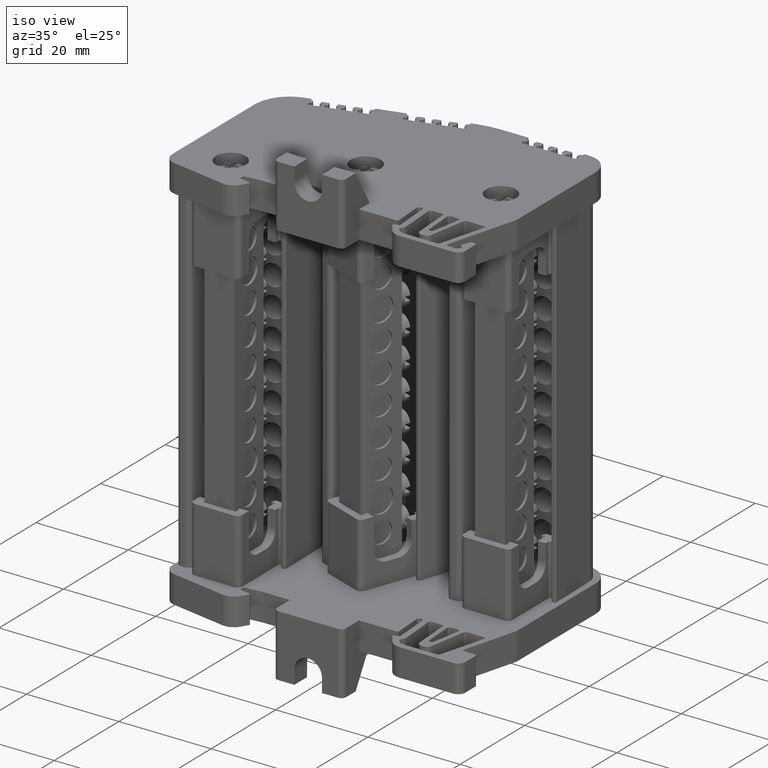
[diagram: clean part render]
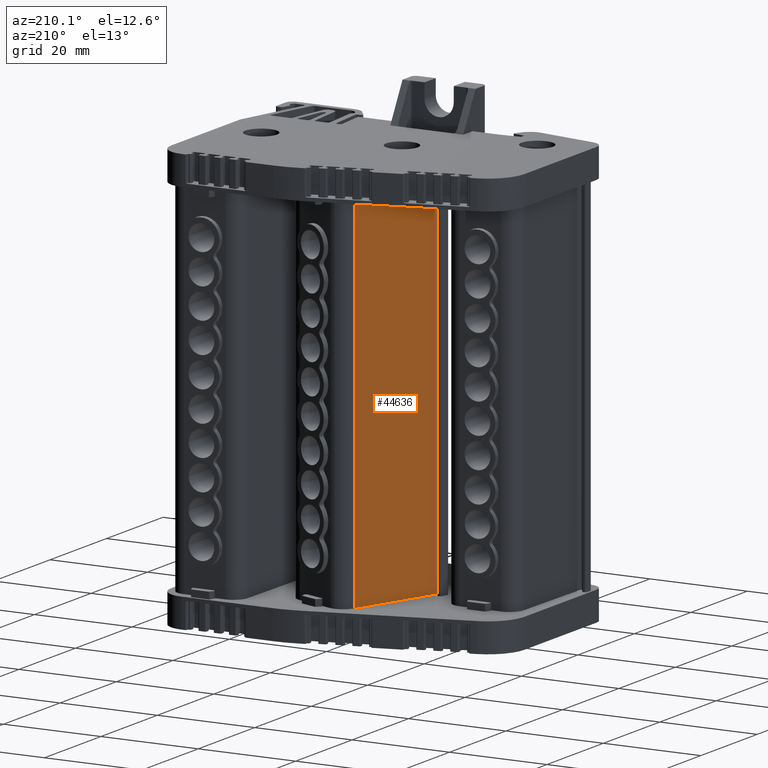
[diagram: tour spotlight — one face highlighted and labeled with its STEP entity id]
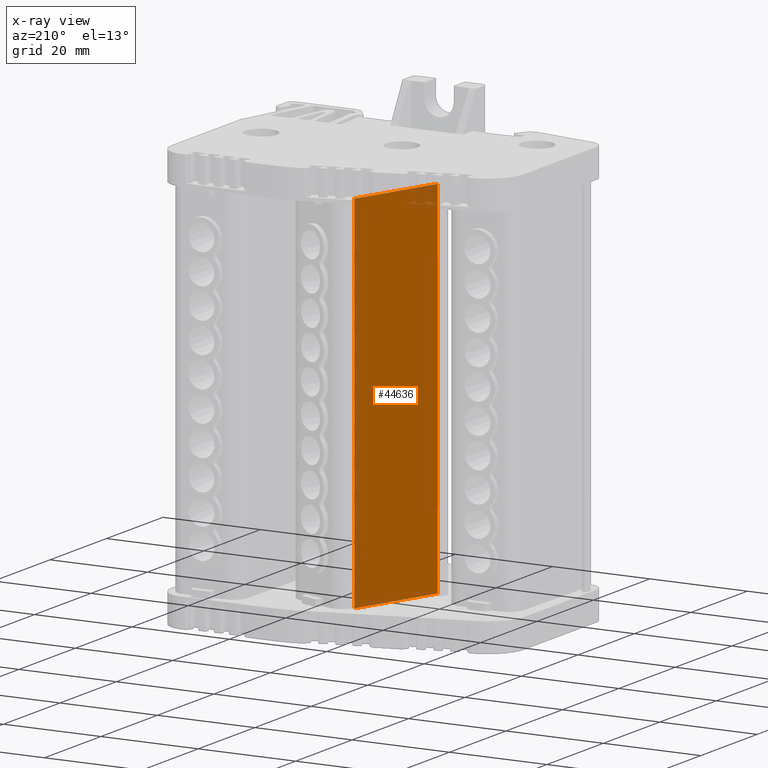
[diagram: x-ray of the same camera — body ghosted, this tour face saturated]
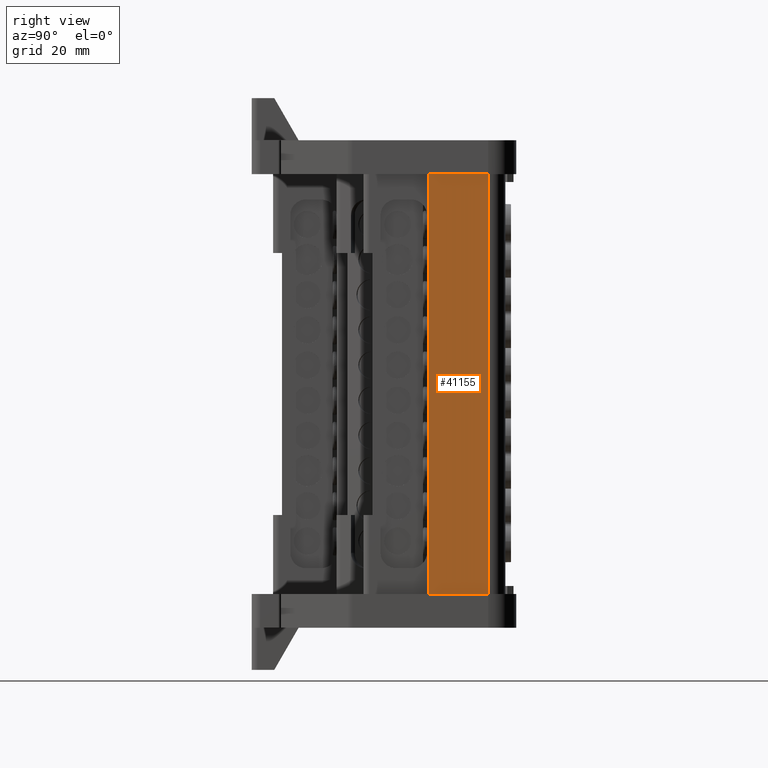
[diagram: tour spotlight — one face highlighted and labeled with its STEP entity id]
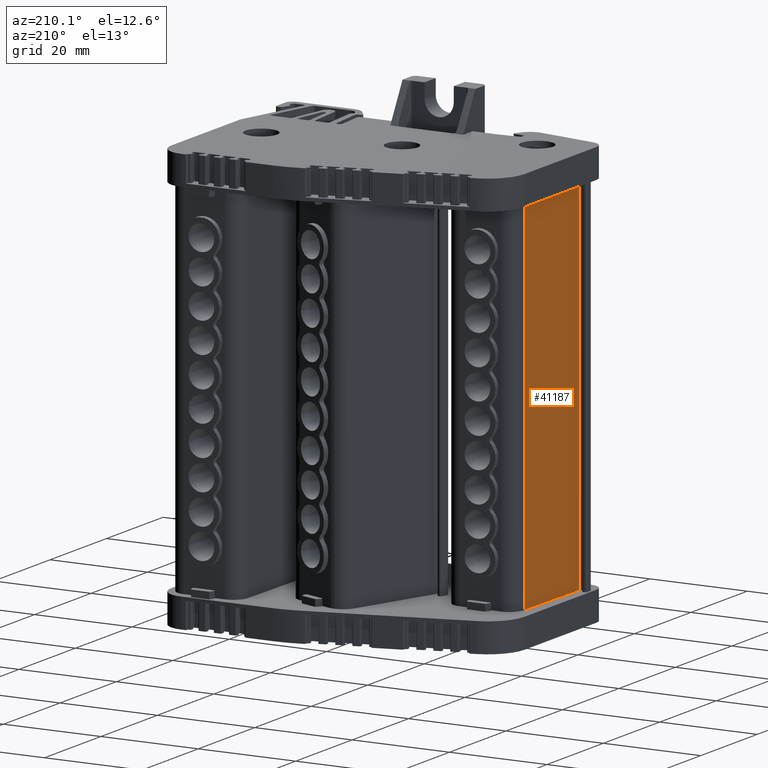
[diagram: tour spotlight — one face highlighted and labeled with its STEP entity id]
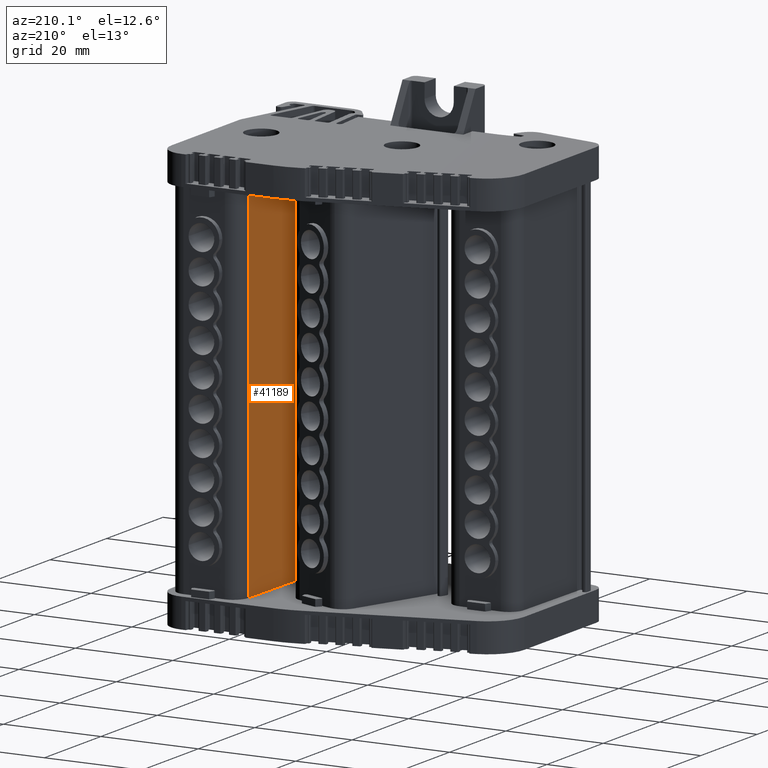
[diagram: tour spotlight — one face highlighted and labeled with its STEP entity id]
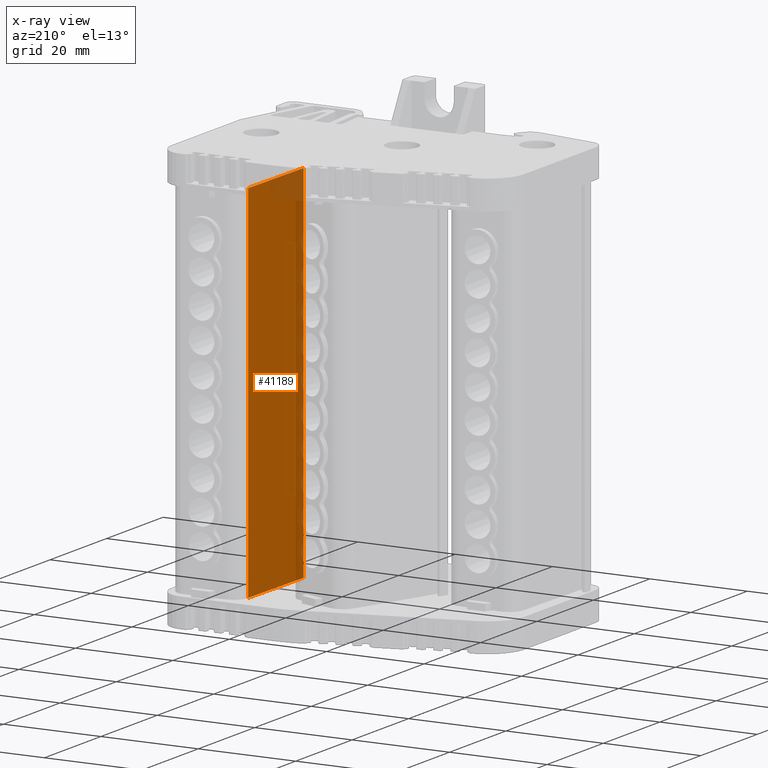
[diagram: x-ray of the same camera — body ghosted, this tour face saturated]
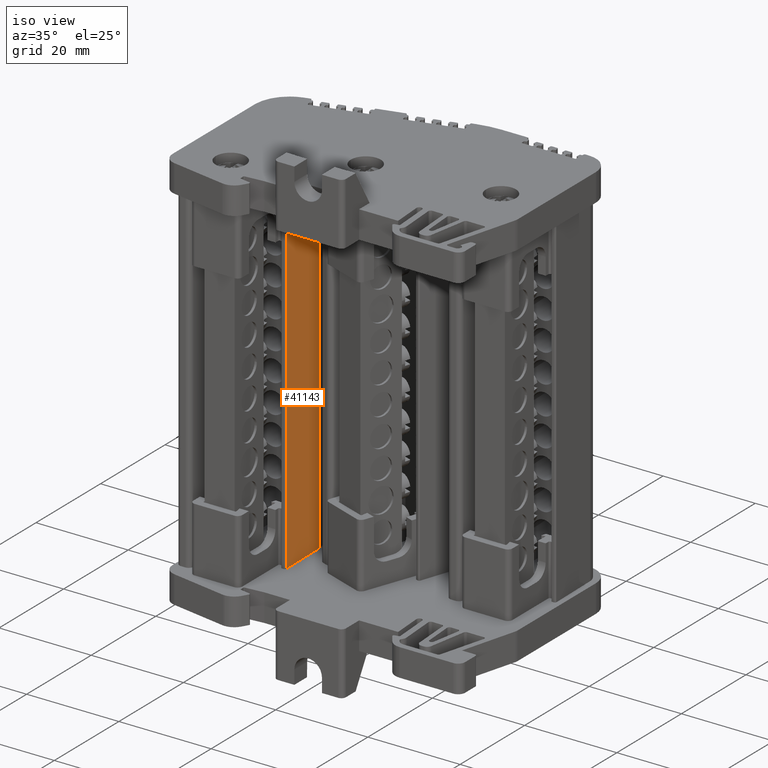
[diagram: tour spotlight — one face highlighted and labeled with its STEP entity id]
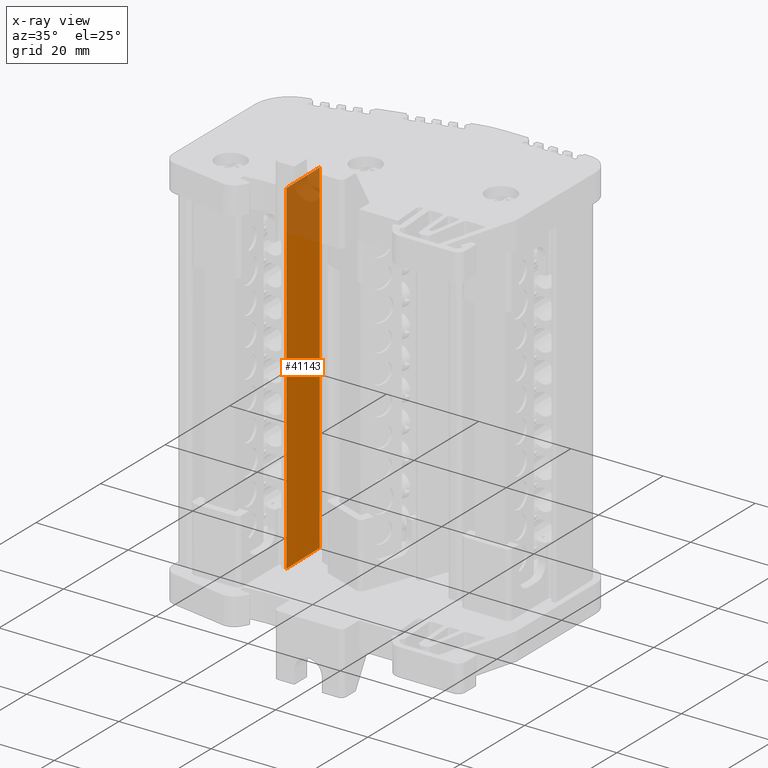
[diagram: x-ray of the same camera — body ghosted, this tour face saturated]
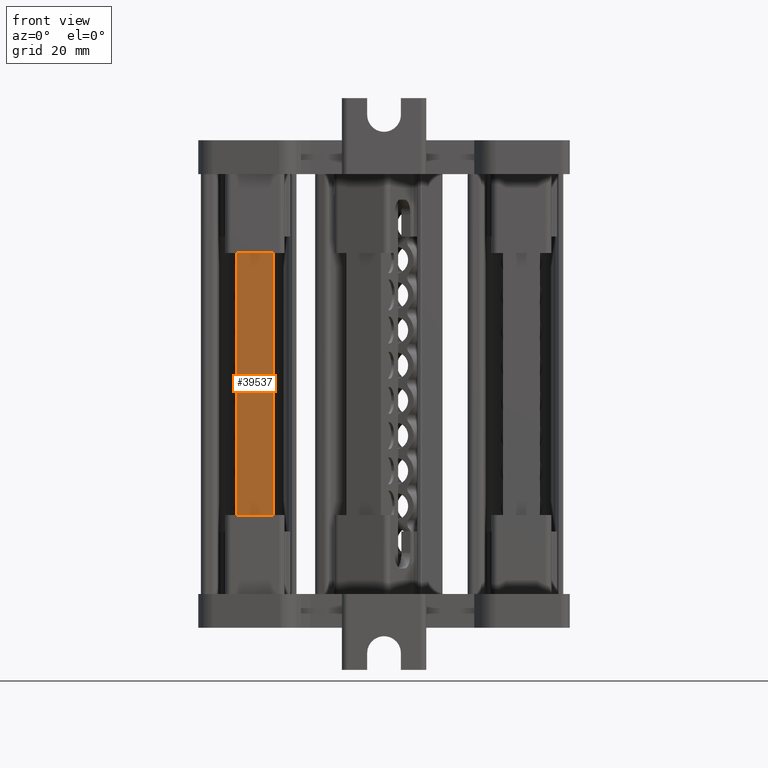
[diagram: tour spotlight — one face highlighted and labeled with its STEP entity id]
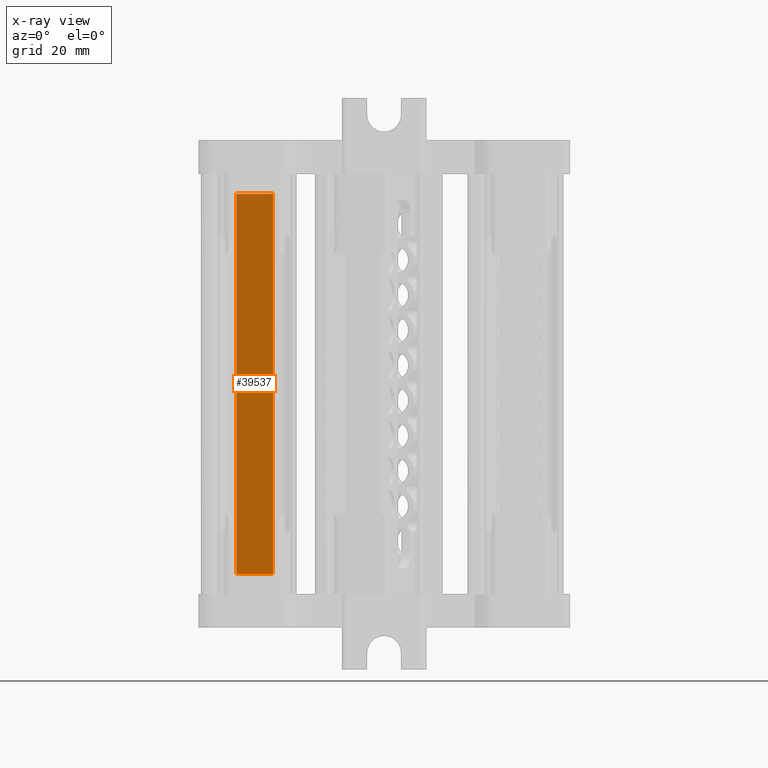
[diagram: x-ray of the same camera — body ghosted, this tour face saturated]
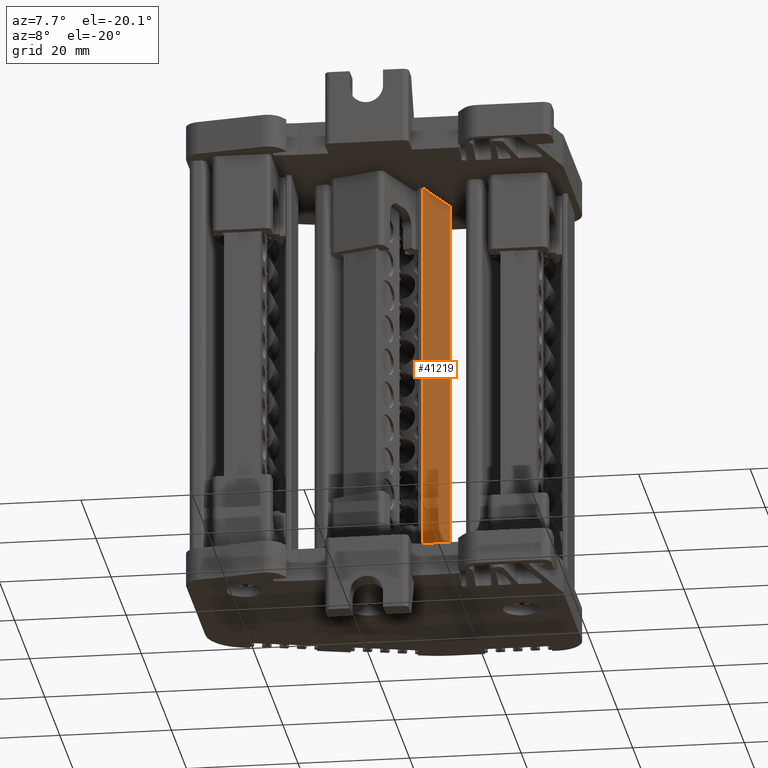
[diagram: tour spotlight — one face highlighted and labeled with its STEP entity id]
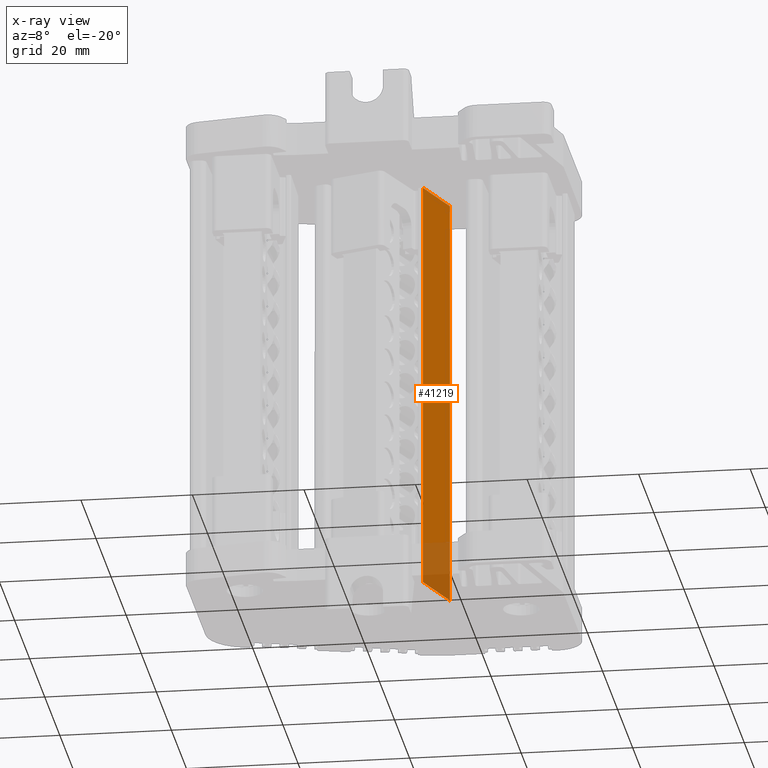
[diagram: x-ray of the same camera — body ghosted, this tour face saturated]
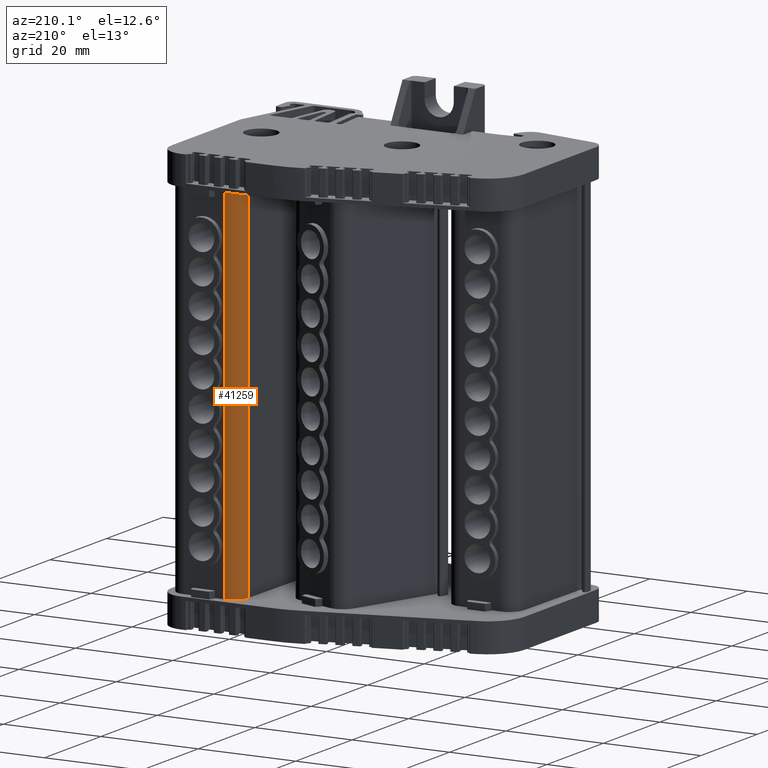
[diagram: tour spotlight — one face highlighted and labeled with its STEP entity id]
A machine part: a face-by-face anatomy tour. The part has 2741 B-rep faces; the first image is the clean iso view, then the 8 largest visible faces are spotlighted one at a time (largest first), each with its STEP entity span.

Face 1 — auxiliary view, entity #44636. An x-ray twin of the same camera follows (body ghosted, this face saturated) — the face is partly hidden behind the body. In plain terms, the highlighted planar face has unit normal (-0.9336, 0.3584, 0).
Definition (entity closure, byte-faithful):
#4923 = VECTOR ( 'NONE', #12822, 1000.000000000000000 ) ;
#5934 = VECTOR ( 'NONE', #15798, 1000.000000000000000 ) ;
#12818 = LINE ( 'NONE', #12820, #4923 ) ;
#12820 = CARTESIAN_POINT ( 'NONE',  ( -308.1005757181860100, 209.1857004789614500, 25.71293318655229500 ) ) ;
#12822 = DIRECTION ( 'NONE',  ( -0.3583670154709076000, -0.9335807850542310300, 0.0000000000000000000 ) ) ;
#15652 = LINE ( 'NONE', #15799, #5934 ) ;
#15798 = DIRECTION ( 'NONE',  ( 0.3583670154709076000, 0.9335807850542310300, -0.0000000000000000000 ) ) ;
#15799 = CARTESIAN_POINT ( 'NONE',  ( -308.1005757181852100, 209.1857004789611700, 100.3119239351457400 ) ) ;
#17109 = VERTEX_POINT ( 'NONE', #79592 ) ;
#17186 = VERTEX_POINT ( 'NONE', #79678 ) ;
#27749 = AXIS2_PLACEMENT_3D ( 'NONE', #73707, #73710, #73720 ) ;
#28361 = DIRECTION ( 'NONE',  ( 1.026475324051172400E-014, -3.940257814039981000E-015, 1.000000000000000000 ) ) ;
#28382 = CARTESIAN_POINT ( 'NONE',  ( -308.1005757181842500, 209.1857004789614800, 176.6548958728825800 ) ) ;
#28420 = LINE ( 'NONE', #28382, #60305 ) ;
#32128 = VECTOR ( 'NONE', #82588, 1000.000000000000000 ) ;
#40226 = EDGE_CURVE ( 'NONE', #17186, #62039, #15652, .T. ) ;
#40269 = EDGE_CURVE ( 'NONE', #62051, #17109, #12818, .T. ) ;
#44636 = ADVANCED_FACE ( 'NONE', ( #73718 ), #73680, .T. ) ;
#50232 = EDGE_LOOP ( 'NONE', ( #65240, #65312, #65275, #65284 ) ) ;
#59705 = EDGE_CURVE ( 'NONE', #62039, #62051, #82596, .T. ) ;
#60305 = VECTOR ( 'NONE', #28361, 1000.000000000000000 ) ;
#62039 = VERTEX_POINT ( 'NONE', #110051 ) ;
#62051 = VERTEX_POINT ( 'NONE', #110050 ) ;
#65240 = ORIENTED_EDGE ( 'NONE', *, *, #102246, .T. ) ;
#65275 = ORIENTED_EDGE ( 'NONE', *, *, #59705, .T. ) ;
#65284 = ORIENTED_EDGE ( 'NONE', *, *, #40269, .T. ) ;
#65312 = ORIENTED_EDGE ( 'NONE', *, *, #40226, .T. ) ;
#73680 = PLANE ( 'NONE',  #27749 ) ;
#73707 = CARTESIAN_POINT ( 'NONE',  ( -308.1005757181844200, 209.1857004789608800, 176.6548958728825800 ) ) ;
#73710 = DIRECTION ( 'NONE',  ( -0.9335807850542310300, 0.3583670154709076000, 1.099503482166832900E-014 ) ) ;
#73718 = FACE_OUTER_BOUND ( 'NONE', #50232, .T. ) ;
#73720 = DIRECTION ( 'NONE',  ( -0.3583670154709076000, -0.9335807850542310300, 0.0000000000000000000 ) ) ;
#79592 = CARTESIAN_POINT ( 'NONE',  ( -308.1005757181857200, 209.1857004789620500, 25.71293318655220600 ) ) ;
#79678 = CARTESIAN_POINT ( 'NONE',  ( -308.1005757181852100, 209.1857004789611700, 100.3119239351457400 ) ) ;
#82588 = DIRECTION ( 'NONE',  ( -1.026475324051172400E-014, 3.940257814039981000E-015, -1.000000000000000000 ) ) ;
#82595 = CARTESIAN_POINT ( 'NONE',  ( -301.2801622102116400, 226.9535382605734200, 176.6548958728825800 ) ) ;
#82596 = LINE ( 'NONE', #82595, #32128 ) ;
#102246 = EDGE_CURVE ( 'NONE', #17109, #17186, #28420, .T. ) ;
#110050 = CARTESIAN_POINT ( 'NONE',  ( -301.2801622102133500, 226.9535382605736200, 25.71293318655231300 ) ) ;
#110051 = CARTESIAN_POINT ( 'NONE',  ( -301.2801622102127200, 226.9535382605730800, 100.3119239351456600 ) ) ;

Face 2 — right view, entity #41155. In plain terms, the highlighted planar face has unit normal (0.9998, 0.0175, -0).
Definition (entity closure, byte-faithful):
#5753 = VECTOR ( 'NONE', #14421, 1000.000000000000000 ) ;
#5866 = VECTOR ( 'NONE', #15002, 1000.000000000000100 ) ;
#8393 = EDGE_LOOP ( 'NONE', ( #96597, #96555, #96576, #96564 ) ) ;
#13414 = AXIS2_PLACEMENT_3D ( 'NONE', #33312, #33326, #33313 ) ;
#13807 = VECTOR ( 'NONE', #16910, 1000.000000000000100 ) ;
#13983 = VECTOR ( 'NONE', #16565, 1000.000000000000000 ) ;
#14413 = CARTESIAN_POINT ( 'NONE',  ( -266.0590344645408400, 218.5356428966728100, 176.6548958728857600 ) ) ;
#14421 = DIRECTION ( 'NONE',  ( -6.700897813742073800E-015, -1.169646064160823000E-016, -1.000000000000000000 ) ) ;
#14462 = LINE ( 'NONE', #14413, #5753 ) ;
#14956 = LINE ( 'NONE', #14971, #5866 ) ;
#14971 = CARTESIAN_POINT ( 'NONE',  ( -266.0590344645413000, 218.5356428966738100, 100.3119239351454200 ) ) ;
#15002 = DIRECTION ( 'NONE',  ( 0.01745240643726309400, -0.9998476951563914900, -0.0000000000000000000 ) ) ;
#16538 = LINE ( 'NONE', #16609, #13983 ) ;
#16565 = DIRECTION ( 'NONE',  ( -6.982962677686110500E-015, 1.604252062634190000E-014, -1.000000000000000000 ) ) ;
#16609 = CARTESIAN_POINT ( 'NONE',  ( -266.2446231779386500, 229.1680131662735400, 176.6548958728862400 ) ) ;
#16871 = CARTESIAN_POINT ( 'NONE',  ( -266.0590344645418100, 218.5356428966737800, 25.71293318655237700 ) ) ;
#16901 = LINE ( 'NONE', #16871, #13807 ) ;
#16910 = DIRECTION ( 'NONE',  ( -0.01745240643726309400, 0.9998476951563914900, 0.0000000000000000000 ) ) ;
#33312 = CARTESIAN_POINT ( 'NONE',  ( -266.0590344645408400, 218.5356428966738100, 176.6548958728857600 ) ) ;
#33313 = DIRECTION ( 'NONE',  ( -0.01745240643726309400, 0.9998476951563914900, 0.0000000000000000000 ) ) ;
#33320 = FACE_OUTER_BOUND ( 'NONE', #8393, .T. ) ;
#33326 = DIRECTION ( 'NONE',  ( 0.9998476951563916000, 0.01745240643726309700, -6.701918548398464200E-015 ) ) ;
#33363 = PLANE ( 'NONE',  #13414 ) ;
#40084 = EDGE_CURVE ( 'NONE', #64631, #64655, #14462, .T. ) ;
#40164 = EDGE_CURVE ( 'NONE', #64572, #64631, #14956, .T. ) ;
#40432 = EDGE_CURVE ( 'NONE', #64572, #64820, #16538, .T. ) ;
#40478 = EDGE_CURVE ( 'NONE', #64655, #64820, #16901, .T. ) ;
#41155 = ADVANCED_FACE ( 'NONE', ( #33320 ), #33363, .T. ) ;
#64572 = VERTEX_POINT ( 'NONE', #110494 ) ;
#64631 = VERTEX_POINT ( 'NONE', #110524 ) ;
#64655 = VERTEX_POINT ( 'NONE', #110518 ) ;
#64820 = VERTEX_POINT ( 'NONE', #110620 ) ;
#96555 = ORIENTED_EDGE ( 'NONE', *, *, #40084, .T. ) ;
#96564 = ORIENTED_EDGE ( 'NONE', *, *, #40432, .F. ) ;
#96576 = ORIENTED_EDGE ( 'NONE', *, *, #40478, .T. ) ;
#96597 = ORIENTED_EDGE ( 'NONE', *, *, #40164, .T. ) ;
#110494 = CARTESIAN_POINT ( 'NONE',  ( -266.2446231779385400, 229.1680131662742200, 100.3119239351453600 ) ) ;
#110518 = CARTESIAN_POINT ( 'NONE',  ( -266.0590344645418100, 218.5356428966730700, 25.71293318655237700 ) ) ;
#110524 = CARTESIAN_POINT ( 'NONE',  ( -266.0590344645412400, 218.5356428966725000, 100.3119239351454600 ) ) ;
#110620 = CARTESIAN_POINT ( 'NONE',  ( -266.2446231779389900, 229.1680131662754400, 25.71293318655246600 ) ) ;

Face 3 — auxiliary view, entity #41187. In plain terms, the highlighted planar face has unit normal (-0.9998, 0.0175, 0).
Definition (entity closure, byte-faithful):
#5856 = VECTOR ( 'NONE', #14947, 1000.000000000000000 ) ;
#8594 = EDGE_LOOP ( 'NONE', ( #46945, #47005, #46868, #46940 ) ) ;
#12141 = AXIS2_PLACEMENT_3D ( 'NONE', #33556, #33588, #33519 ) ;
#13463 = VECTOR ( 'NONE', #16094, 1000.000000000000000 ) ;
#13635 = VECTOR ( 'NONE', #16239, 1000.000000000000000 ) ;
#14809 = LINE ( 'NONE', #14812, #5856 ) ;
#14812 = CARTESIAN_POINT ( 'NONE',  ( -328.4304088352273500, 193.9834880291480200, 100.3119239351459000 ) ) ;
#14947 = DIRECTION ( 'NONE',  ( 0.01745240644083065700, 0.9998476951563293200, -0.0000000000000000000 ) ) ;
#16090 = CARTESIAN_POINT ( 'NONE',  ( -328.4304088352279200, 193.9834880291480500, 25.71293318655210000 ) ) ;
#16094 = DIRECTION ( 'NONE',  ( -0.01745240644083065700, -0.9998476951563293200, 0.0000000000000000000 ) ) ;
#16145 = LINE ( 'NONE', #16090, #13463 ) ;
#16167 = LINE ( 'NONE', #16192, #13635 ) ;
#16192 = CARTESIAN_POINT ( 'NONE',  ( -328.0982559765735700, 213.0125125530685800, 176.6548958728990000 ) ) ;
#16239 = DIRECTION ( 'NONE',  ( -7.260773709496582100E-015, 1.267372765541248700E-016, -1.000000000000000000 ) ) ;
#17239 = VERTEX_POINT ( 'NONE', #79688 ) ;
#17283 = VERTEX_POINT ( 'NONE', #79658 ) ;
#33500 = VECTOR ( 'NONE', #35269, 1000.000000000000000 ) ;
#33519 = DIRECTION ( 'NONE',  ( -0.01745240644083065700, -0.9998476951563293200, 0.0000000000000000000 ) ) ;
#33521 = PLANE ( 'NONE',  #12141 ) ;
#33556 = CARTESIAN_POINT ( 'NONE',  ( -328.4304088352267900, 193.9834880291480200, 176.6548958728990000 ) ) ;
#33588 = DIRECTION ( 'NONE',  ( -0.9998476951563293200, 0.01745240644083065700, 7.261879728953455700E-015 ) ) ;
#33608 = FACE_OUTER_BOUND ( 'NONE', #8594, .T. ) ;
#35269 = DIRECTION ( 'NONE',  ( 7.260773709496582100E-015, -1.267372765541248700E-016, 1.000000000000000000 ) ) ;
#35324 = LINE ( 'NONE', #35326, #33500 ) ;
#35326 = CARTESIAN_POINT ( 'NONE',  ( -328.4304088352267300, 193.9834880291498100, 176.6548958728990000 ) ) ;
#40157 = EDGE_CURVE ( 'NONE', #17283, #64546, #14809, .T. ) ;
#40347 = EDGE_CURVE ( 'NONE', #64807, #17239, #16145, .T. ) ;
#40372 = EDGE_CURVE ( 'NONE', #64546, #64807, #16167, .T. ) ;
#41187 = ADVANCED_FACE ( 'NONE', ( #33608 ), #33521, .T. ) ;
#46868 = ORIENTED_EDGE ( 'NONE', *, *, #40347, .T. ) ;
#46940 = ORIENTED_EDGE ( 'NONE', *, *, #102478, .T. ) ;
#46945 = ORIENTED_EDGE ( 'NONE', *, *, #40157, .T. ) ;
#47005 = ORIENTED_EDGE ( 'NONE', *, *, #40372, .T. ) ;
#64546 = VERTEX_POINT ( 'NONE', #110480 ) ;
#64807 = VERTEX_POINT ( 'NONE', #110635 ) ;
#79658 = CARTESIAN_POINT ( 'NONE',  ( -328.4304088352273500, 193.9834880291489600, 100.3119239351459000 ) ) ;
#79688 = CARTESIAN_POINT ( 'NONE',  ( -328.4304088352279200, 193.9834880291498400, 25.71293318655201800 ) ) ;
#102478 = EDGE_CURVE ( 'NONE', #17239, #17283, #35324, .T. ) ;
#110480 = CARTESIAN_POINT ( 'NONE',  ( -328.0982559765741400, 213.0125125530669300, 100.3119239351458400 ) ) ;
#110635 = CARTESIAN_POINT ( 'NONE',  ( -328.0982559765747100, 213.0125125530680400, 25.71293318655209600 ) ) ;

Face 4 — auxiliary view, entity #41189. An x-ray twin of the same camera follows (body ghosted, this face saturated) — the face is partly hidden behind the body. In plain terms, the highlighted planar face has unit normal (-0.9998, 0.0175, 0).
Definition (entity closure, byte-faithful):
#5929 = VECTOR ( 'NONE', #15512, 1000.000000000000000 ) ;
#8364 = EDGE_LOOP ( 'NONE', ( #96421, #96430, #47304, #96450 ) ) ;
#11945 = AXIS2_PLACEMENT_3D ( 'NONE', #33584, #33539, #33590 ) ;
#13907 = VECTOR ( 'NONE', #16572, 1000.000000000000000 ) ;
#13919 = VECTOR ( 'NONE', #16728, 1000.000000000000000 ) ;
#15512 = DIRECTION ( 'NONE',  ( 0.01745240644083065700, 0.9998476951563293200, -0.0000000000000000000 ) ) ;
#15631 = CARTESIAN_POINT ( 'NONE',  ( -281.0506176341937100, 210.0267035228407100, 100.3119239351456100 ) ) ;
#15655 = LINE ( 'NONE', #15631, #5929 ) ;
#16572 = DIRECTION ( 'NONE',  ( 6.982962677686110500E-015, -1.604252062634190000E-014, 1.000000000000000000 ) ) ;
#16623 = LINE ( 'NONE', #16630, #13907 ) ;
#16630 = CARTESIAN_POINT ( 'NONE',  ( -280.7184647755400400, 229.0557280467588700, 176.6548958728863000 ) ) ;
#16661 = LINE ( 'NONE', #16703, #13919 ) ;
#16703 = CARTESIAN_POINT ( 'NONE',  ( -281.0506176341942800, 210.0267035228407300, 25.71293318655240500 ) ) ;
#16728 = DIRECTION ( 'NONE',  ( -0.01745240644083065700, -0.9998476951563293200, 0.0000000000000000000 ) ) ;
#33536 = PLANE ( 'NONE',  #11945 ) ;
#33539 = DIRECTION ( 'NONE',  ( -0.9998476951563293200, 0.01745240644083065700, 7.261879728953455700E-015 ) ) ;
#33569 = FACE_OUTER_BOUND ( 'NONE', #8364, .T. ) ;
#33584 = CARTESIAN_POINT ( 'NONE',  ( -281.0506176341931500, 210.0267035228407100, 176.6548958728857600 ) ) ;
#33590 = DIRECTION ( 'NONE',  ( -0.01745240644083065700, -0.9998476951563293200, 0.0000000000000000000 ) ) ;
#33869 = VECTOR ( 'NONE', #34763, 1000.000000000000000 ) ;
#34748 = CARTESIAN_POINT ( 'NONE',  ( -281.0506176341930900, 210.0267035228425000, 176.6548958728857600 ) ) ;
#34760 = LINE ( 'NONE', #34748, #33869 ) ;
#34763 = DIRECTION ( 'NONE',  ( 7.260773709496582100E-015, -1.267372765541248700E-016, 1.000000000000000000 ) ) ;
#40221 = EDGE_CURVE ( 'NONE', #64392, #64580, #15655, .T. ) ;
#40440 = EDGE_CURVE ( 'NONE', #64839, #64580, #16623, .T. ) ;
#40454 = EDGE_CURVE ( 'NONE', #64839, #64359, #16661, .T. ) ;
#41189 = ADVANCED_FACE ( 'NONE', ( #33569 ), #33536, .T. ) ;
#47304 = ORIENTED_EDGE ( 'NONE', *, *, #40454, .T. ) ;
#64359 = VERTEX_POINT ( 'NONE', #110330 ) ;
#64392 = VERTEX_POINT ( 'NONE', #110404 ) ;
#64580 = VERTEX_POINT ( 'NONE', #110508 ) ;
#64839 = VERTEX_POINT ( 'NONE', #110636 ) ;
#96421 = ORIENTED_EDGE ( 'NONE', *, *, #40221, .T. ) ;
#96430 = ORIENTED_EDGE ( 'NONE', *, *, #40440, .F. ) ;
#96450 = ORIENTED_EDGE ( 'NONE', *, *, #102653, .T. ) ;
#102653 = EDGE_CURVE ( 'NONE', #64359, #64392, #34760, .T. ) ;
#110330 = CARTESIAN_POINT ( 'NONE',  ( -281.0506176341942800, 210.0267035228425200, 25.71293318655232300 ) ) ;
#110404 = CARTESIAN_POINT ( 'NONE',  ( -281.0506176341937100, 210.0267035228416400, 100.3119239351456100 ) ) ;
#110508 = CARTESIAN_POINT ( 'NONE',  ( -280.7184647755405000, 229.0557280467589900, 100.3119239351455400 ) ) ;
#110636 = CARTESIAN_POINT ( 'NONE',  ( -280.7184647755410700, 229.0557280467606600, 25.71293318655240200 ) ) ;

Face 5 — iso view, entity #41143. An x-ray twin of the same camera follows (body ghosted, this face saturated) — the face is partly hidden behind the body. In plain terms, the highlighted planar face has unit normal (0.9998, 0.0175, -0).
Definition (entity closure, byte-faithful):
#5966 = VECTOR ( 'NONE', #15811, 1000.000000000000100 ) ;
#8513 = EDGE_LOOP ( 'NONE', ( #47166, #47208, #47212, #47184 ) ) ;
#13389 = AXIS2_PLACEMENT_3D ( 'NONE', #33258, #33286, #33287 ) ;
#13564 = VECTOR ( 'NONE', #16108, 1000.000000000000000 ) ;
#13747 = VECTOR ( 'NONE', #16474, 1000.000000000000100 ) ;
#15682 = LINE ( 'NONE', #15684, #5966 ) ;
#15684 = CARTESIAN_POINT ( 'NONE',  ( -313.4388256655750000, 202.4924274029810900, 100.3119239351457300 ) ) ;
#15811 = DIRECTION ( 'NONE',  ( 0.01745240643726309400, -0.9998476951563914900, -0.0000000000000000000 ) ) ;
#16077 = CARTESIAN_POINT ( 'NONE',  ( -313.6244143789722900, 213.1247976725808500, 176.6548958728994900 ) ) ;
#16108 = DIRECTION ( 'NONE',  ( -6.982962677686110500E-015, 1.604252062634190000E-014, -1.000000000000000000 ) ) ;
#16139 = LINE ( 'NONE', #16077, #13564 ) ;
#16472 = LINE ( 'NONE', #16480, #13747 ) ;
#16474 = DIRECTION ( 'NONE',  ( -0.01745240643726309400, 0.9998476951563914900, 0.0000000000000000000 ) ) ;
#16480 = CARTESIAN_POINT ( 'NONE',  ( -313.4388256655755100, 202.4924274029810600, 25.71293318655207100 ) ) ;
#33224 = FACE_OUTER_BOUND ( 'NONE', #8513, .T. ) ;
#33258 = CARTESIAN_POINT ( 'NONE',  ( -313.4388256655745400, 202.4924274029810900, 176.6548958728990000 ) ) ;
#33286 = DIRECTION ( 'NONE',  ( 0.9998476951563916000, 0.01745240643726309700, -6.701918548398464200E-015 ) ) ;
#33287 = DIRECTION ( 'NONE',  ( -0.01745240643726309400, 0.9998476951563914900, 0.0000000000000000000 ) ) ;
#33297 = PLANE ( 'NONE',  #13389 ) ;
#33712 = VECTOR ( 'NONE', #34485, 1000.000000000000000 ) ;
#34467 = CARTESIAN_POINT ( 'NONE',  ( -313.4388256655745400, 202.4924274029801300, 176.6548958728990000 ) ) ;
#34484 = LINE ( 'NONE', #34467, #33712 ) ;
#34485 = DIRECTION ( 'NONE',  ( -6.700897813742073800E-015, -1.169646064160823000E-016, -1.000000000000000000 ) ) ;
#40232 = EDGE_CURVE ( 'NONE', #64712, #64402, #15682, .T. ) ;
#40350 = EDGE_CURVE ( 'NONE', #64712, #64817, #16139, .T. ) ;
#40410 = EDGE_CURVE ( 'NONE', #64376, #64817, #16472, .T. ) ;
#41143 = ADVANCED_FACE ( 'NONE', ( #33224 ), #33297, .T. ) ;
#47166 = ORIENTED_EDGE ( 'NONE', *, *, #40232, .T. ) ;
#47184 = ORIENTED_EDGE ( 'NONE', *, *, #40350, .F. ) ;
#47208 = ORIENTED_EDGE ( 'NONE', *, *, #102573, .T. ) ;
#47212 = ORIENTED_EDGE ( 'NONE', *, *, #40410, .T. ) ;
#64376 = VERTEX_POINT ( 'NONE', #110380 ) ;
#64402 = VERTEX_POINT ( 'NONE', #110361 ) ;
#64712 = VERTEX_POINT ( 'NONE', #110578 ) ;
#64817 = VERTEX_POINT ( 'NONE', #110634 ) ;
#102573 = EDGE_CURVE ( 'NONE', #64402, #64376, #34484, .T. ) ;
#110361 = CARTESIAN_POINT ( 'NONE',  ( -313.4388256655750000, 202.4924274029797900, 100.3119239351457600 ) ) ;
#110380 = CARTESIAN_POINT ( 'NONE',  ( -313.4388256655744300, 202.4924274029801600, 25.71293318655207800 ) ) ;
#110578 = CARTESIAN_POINT ( 'NONE',  ( -313.6244143789722300, 213.1247976725815600, 100.3119239351456700 ) ) ;
#110634 = CARTESIAN_POINT ( 'NONE',  ( -313.6244143789726900, 213.1247976725827600, 25.71293318655216000 ) ) ;

Face 6 — front view, entity #39537. An x-ray twin of the same camera follows (body ghosted, this face saturated) — the face is partly hidden behind the body. In plain terms, the highlighted planar face has unit normal (0, 1, -0).
Definition (entity closure, byte-faithful):
#3969 = FACE_OUTER_BOUND ( 'NONE', #50724, .T. ) ;
#4046 = PLANE ( 'NONE',  #5490 ) ;
#4088 = CARTESIAN_POINT ( 'NONE',  ( -324.1090389652600800, 192.4433730480879500, 29.24122990646375800 ) ) ;
#4150 = DIRECTION ( 'NONE',  ( 1.197504000946732500E-013, 1.000000000000000000, -8.182587763210039800E-015 ) ) ;
#4259 = DIRECTION ( 'NONE',  ( -1.000000000000000000, 1.197504000946732500E-013, 0.0000000000000000000 ) ) ;
#5490 = AXIS2_PLACEMENT_3D ( 'NONE', #4088, #4150, #4259 ) ;
#10041 = VERTEX_POINT ( 'NONE', #66114 ) ;
#10158 = VERTEX_POINT ( 'NONE', #66116 ) ;
#13440 = CARTESIAN_POINT ( 'NONE',  ( -317.6090389652600300, 192.4433730480877200, 29.24122990646370800 ) ) ;
#13541 = DIRECTION ( 'NONE',  ( -1.259341268657547500E-016, 1.508066207774747300E-029, -1.000000000000000000 ) ) ;
#13553 = LINE ( 'NONE', #13440, #18840 ) ;
#13603 = LINE ( 'NONE', #13640, #18817 ) ;
#13613 = DIRECTION ( 'NONE',  ( -1.259341268657547500E-016, 1.508066207774747300E-029, -1.000000000000000000 ) ) ;
#13640 = CARTESIAN_POINT ( 'NONE',  ( -324.1090389652600300, 192.4433730480885500, 29.24122990646370800 ) ) ;
#13673 = LINE ( 'NONE', #13678, #18866 ) ;
#13678 = CARTESIAN_POINT ( 'NONE',  ( -317.7967814379477400, 192.4433730480871800, 29.24122990646639100 ) ) ;
#13701 = DIRECTION ( 'NONE',  ( -1.000000000000000000, 2.763709470186517000E-032, 3.469446951942104800E-018 ) ) ;
#17980 = VERTEX_POINT ( 'NONE', #78684 ) ;
#18036 = VERTEX_POINT ( 'NONE', #78654 ) ;
#18817 = VECTOR ( 'NONE', #13613, 1000.000000000000000 ) ;
#18840 = VECTOR ( 'NONE', #13541, 1000.000000000000000 ) ;
#18866 = VECTOR ( 'NONE', #13701, 1000.000000000000000 ) ;
#24615 = EDGE_CURVE ( 'NONE', #10041, #10158, #99802, .T. ) ;
#39537 = ADVANCED_FACE ( 'NONE', ( #3969 ), #4046, .F. ) ;
#48719 = ORIENTED_EDGE ( 'NONE', *, *, #94538, .T. ) ;
#48733 = ORIENTED_EDGE ( 'NONE', *, *, #24615, .F. ) ;
#48746 = ORIENTED_EDGE ( 'NONE', *, *, #94545, .F. ) ;
#48747 = ORIENTED_EDGE ( 'NONE', *, *, #94484, .F. ) ;
#50724 = EDGE_LOOP ( 'NONE', ( #48719, #48746, #48747, #48733 ) ) ;
#66114 = CARTESIAN_POINT ( 'NONE',  ( -324.1090389652600800, 192.4433730480885500, 96.78362721523151900 ) ) ;
#66116 = CARTESIAN_POINT ( 'NONE',  ( -317.6090389652600300, 192.4433730480877500, 96.78362721523151900 ) ) ;
#73927 = VECTOR ( 'NONE', #99810, 1000.000000000000000 ) ;
#78654 = CARTESIAN_POINT ( 'NONE',  ( -324.1090389652600800, 192.4433730480875800, 29.24122990646639100 ) ) ;
#78684 = CARTESIAN_POINT ( 'NONE',  ( -317.6090389652593400, 192.4433730480873800, 29.24122990646551700 ) ) ;
#94484 = EDGE_CURVE ( 'NONE', #10158, #17980, #13553, .T. ) ;
#94538 = EDGE_CURVE ( 'NONE', #10041, #18036, #13603, .T. ) ;
#94545 = EDGE_CURVE ( 'NONE', #17980, #18036, #13673, .T. ) ;
#99800 = CARTESIAN_POINT ( 'NONE',  ( -324.1090389652600800, 192.4433730480885200, 96.78362721523146200 ) ) ;
#99802 = LINE ( 'NONE', #99800, #73927 ) ;
#99810 = DIRECTION ( 'NONE',  ( 1.000000000000000000, -1.197504000946732500E-013, -0.0000000000000000000 ) ) ;

Face 7 — auxiliary view, entity #41219. An x-ray twin of the same camera follows (body ghosted, this face saturated) — the face is partly hidden behind the body. In plain terms, the highlighted planar face has unit normal (0.9455, -0.3256, -0).
Definition (entity closure, byte-faithful):
#5953 = VECTOR ( 'NONE', #15890, 1000.000000000000000 ) ;
#8543 = EDGE_LOOP ( 'NONE', ( #65402, #65349, #65375, #65361 ) ) ;
#13751 = VECTOR ( 'NONE', #16439, 1000.000000000000000 ) ;
#14055 = VECTOR ( 'NONE', #16854, 1000.000000000000000 ) ;
#15876 = CARTESIAN_POINT ( 'NONE',  ( -291.1028698454767900, 212.0540816016615500, 100.3119239351455400 ) ) ;
#15885 = LINE ( 'NONE', #15876, #5953 ) ;
#15890 = DIRECTION ( 'NONE',  ( -0.3255672084349818800, -0.9455189013403450000, -0.0000000000000000000 ) ) ;
#16439 = DIRECTION ( 'NONE',  ( 0.3255672084349818800, 0.9455189013403450000, 0.0000000000000000000 ) ) ;
#16448 = CARTESIAN_POINT ( 'NONE',  ( -291.1028698454775800, 212.0540816016618100, 25.71293318655223800 ) ) ;
#16450 = LINE ( 'NONE', #16448, #13751 ) ;
#16854 = DIRECTION ( 'NONE',  ( -8.166714072959356300E-015, 9.405853051772095400E-015, -1.000000000000000000 ) ) ;
#16878 = LINE ( 'NONE', #16896, #14055 ) ;
#16896 = CARTESIAN_POINT ( 'NONE',  ( -287.6407914464475700, 222.1087200277498300, 176.6548958728827800 ) ) ;
#17242 = VERTEX_POINT ( 'NONE', #79656 ) ;
#17294 = VERTEX_POINT ( 'NONE', #79744 ) ;
#29194 = DIRECTION ( 'NONE',  ( -1.019649459005282200E-014, 3.510923234638719100E-015, -1.000000000000000000 ) ) ;
#29208 = CARTESIAN_POINT ( 'NONE',  ( -291.1028698454766800, 212.0540816016593300, 176.6548958728824600 ) ) ;
#29216 = LINE ( 'NONE', #29208, #83657 ) ;
#30388 = AXIS2_PLACEMENT_3D ( 'NONE', #33875, #33919, #33831 ) ;
#33831 = DIRECTION ( 'NONE',  ( 0.3255672084349818800, 0.9455189013403450000, 0.0000000000000000000 ) ) ;
#33875 = CARTESIAN_POINT ( 'NONE',  ( -291.1028698454759900, 212.0540816016613000, 176.6548958728824600 ) ) ;
#33879 = PLANE ( 'NONE',  #30388 ) ;
#33883 = FACE_OUTER_BOUND ( 'NONE', #8543, .T. ) ;
#33919 = DIRECTION ( 'NONE',  ( 0.9455189013403450000, -0.3255672084349818800, -1.078401983884036000E-014 ) ) ;
#40248 = EDGE_CURVE ( 'NONE', #64739, #17294, #15885, .T. ) ;
#40409 = EDGE_CURVE ( 'NONE', #17242, #64747, #16450, .T. ) ;
#40481 = EDGE_CURVE ( 'NONE', #64739, #64747, #16878, .T. ) ;
#41219 = ADVANCED_FACE ( 'NONE', ( #33883 ), #33879, .T. ) ;
#64739 = VERTEX_POINT ( 'NONE', #110575 ) ;
#64747 = VERTEX_POINT ( 'NONE', #110555 ) ;
#65349 = ORIENTED_EDGE ( 'NONE', *, *, #40248, .T. ) ;
#65361 = ORIENTED_EDGE ( 'NONE', *, *, #40409, .T. ) ;
#65375 = ORIENTED_EDGE ( 'NONE', *, *, #102354, .T. ) ;
#65402 = ORIENTED_EDGE ( 'NONE', *, *, #40481, .F. ) ;
#79656 = CARTESIAN_POINT ( 'NONE',  ( -291.1028698454773000, 212.0540816016595300, 25.71293318655223100 ) ) ;
#79744 = CARTESIAN_POINT ( 'NONE',  ( -291.1028698454775300, 212.0540816016594500, 100.3119239351455900 ) ) ;
#83657 = VECTOR ( 'NONE', #29194, 1000.000000000000000 ) ;
#102354 = EDGE_CURVE ( 'NONE', #17294, #17242, #29216, .T. ) ;
#110555 = CARTESIAN_POINT ( 'NONE',  ( -287.6407914464482500, 222.1087200277508500, 25.71293318655232300 ) ) ;
#110575 = CARTESIAN_POINT ( 'NONE',  ( -287.6407914464476800, 222.1087200277501400, 100.3119239351454900 ) ) ;

Face 8 — auxiliary view, entity #41259. In plain terms, the highlighted cylindrical surface (edge-blend (fillet) strip) has radius 3.0101 mm, axis along (-0, 0, -1).
Definition (entity closure, byte-faithful):
#5943 = CIRCLE ( 'NONE', #5946, 3.010083036540323100 ) ;
#5946 = AXIS2_PLACEMENT_3D ( 'NONE', #15899, #15863, #15906 ) ;
#9048 = EDGE_LOOP ( 'NONE', ( #93885, #96574, #93901, #93945 ) ) ;
#13885 = CIRCLE ( 'NONE', #13926, 3.010083036540323100 ) ;
#13903 = VECTOR ( 'NONE', #16744, 1000.000000000000000 ) ;
#13907 = VECTOR ( 'NONE', #16572, 1000.000000000000000 ) ;
#13926 = AXIS2_PLACEMENT_3D ( 'NONE', #16836, #16765, #16809 ) ;
#15863 = DIRECTION ( 'NONE',  ( -6.982962677686110500E-015, 1.604252062634190000E-014, -1.000000000000000000 ) ) ;
#15899 = CARTESIAN_POINT ( 'NONE',  ( -277.7089748529634200, 229.1154799737101700, 100.3119239351454600 ) ) ;
#15906 = DIRECTION ( 'NONE',  ( 0.0000000000000000000, 1.000000000000000000, 1.383130063790373000E-014 ) ) ;
#16572 = DIRECTION ( 'NONE',  ( 6.982962677686110500E-015, -1.604252062634190000E-014, 1.000000000000000000 ) ) ;
#16623 = LINE ( 'NONE', #16630, #13907 ) ;
#16630 = CARTESIAN_POINT ( 'NONE',  ( -280.7184647755400400, 229.0557280467588700, 176.6548958728863000 ) ) ;
#16655 = LINE ( 'NONE', #16717, #13903 ) ;
#16717 = CARTESIAN_POINT ( 'NONE',  ( -277.7089748529628500, 232.1255630102492900, 176.6548958728863300 ) ) ;
#16744 = DIRECTION ( 'NONE',  ( -6.982962677686110500E-015, 1.604252062634190000E-014, -1.000000000000000000 ) ) ;
#16765 = DIRECTION ( 'NONE',  ( 6.982962677686110500E-015, -1.604252062634190000E-014, 1.000000000000000000 ) ) ;
#16809 = DIRECTION ( 'NONE',  ( 0.0000000000000000000, 1.000000000000000000, 1.613651741088768500E-014 ) ) ;
#16836 = CARTESIAN_POINT ( 'NONE',  ( -277.7089748529639300, 229.1154799737113600, 25.71293318655237700 ) ) ;
#29085 = AXIS2_PLACEMENT_3D ( 'NONE', #34189, #34193, #34194 ) ;
#34158 = FACE_OUTER_BOUND ( 'NONE', #9048, .T. ) ;
#34180 = CYLINDRICAL_SURFACE ( 'NONE', #29085, 3.010083036540323100 ) ;
#34189 = CARTESIAN_POINT ( 'NONE',  ( -277.7089748529628500, 229.1154799737089400, 176.6548958728862700 ) ) ;
#34193 = DIRECTION ( 'NONE',  ( -6.982962677686110500E-015, 1.604252062634190000E-014, -1.000000000000000000 ) ) ;
#34194 = DIRECTION ( 'NONE',  ( 0.0000000000000000000, 1.000000000000000000, 1.844173418387164300E-014 ) ) ;
#40247 = EDGE_CURVE ( 'NONE', #64580, #64627, #5943, .T. ) ;
#40440 = EDGE_CURVE ( 'NONE', #64839, #64580, #16623, .T. ) ;
#40458 = EDGE_CURVE ( 'NONE', #64627, #64740, #16655, .T. ) ;
#40471 = EDGE_CURVE ( 'NONE', #64740, #64839, #13885, .T. ) ;
#41259 = ADVANCED_FACE ( 'NONE', ( #34158 ), #34180, .T. ) ;
#64580 = VERTEX_POINT ( 'NONE', #110508 ) ;
#64627 = VERTEX_POINT ( 'NONE', #110506 ) ;
#64740 = VERTEX_POINT ( 'NONE', #110589 ) ;
#64839 = VERTEX_POINT ( 'NONE', #110636 ) ;
#93885 = ORIENTED_EDGE ( 'NONE', *, *, #40247, .T. ) ;
#93901 = ORIENTED_EDGE ( 'NONE', *, *, #40471, .T. ) ;
#93945 = ORIENTED_EDGE ( 'NONE', *, *, #40440, .T. ) ;
#96574 = ORIENTED_EDGE ( 'NONE', *, *, #40458, .T. ) ;
#110506 = CARTESIAN_POINT ( 'NONE',  ( -277.7089748529634200, 232.1255630102505400, 100.3119239351454700 ) ) ;
#110508 = CARTESIAN_POINT ( 'NONE',  ( -280.7184647755405000, 229.0557280467589900, 100.3119239351455400 ) ) ;
#110589 = CARTESIAN_POINT ( 'NONE',  ( -277.7089748529638800, 232.1255630102517100, 25.71293318655232000 ) ) ;
#110636 = CARTESIAN_POINT ( 'NONE',  ( -280.7184647755410700, 229.0557280467606600, 25.71293318655240200 ) ) ;